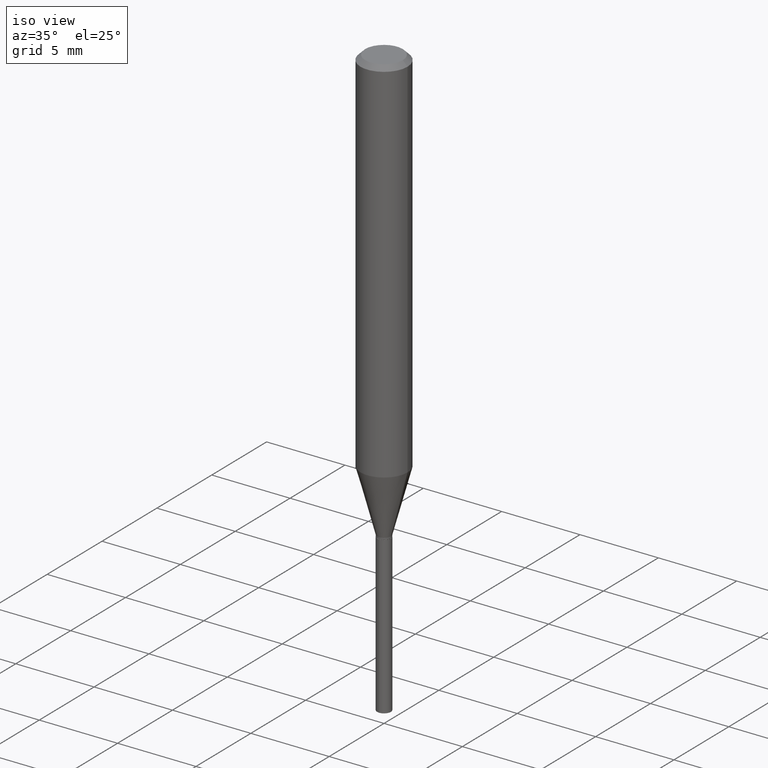
[diagram: clean part render]
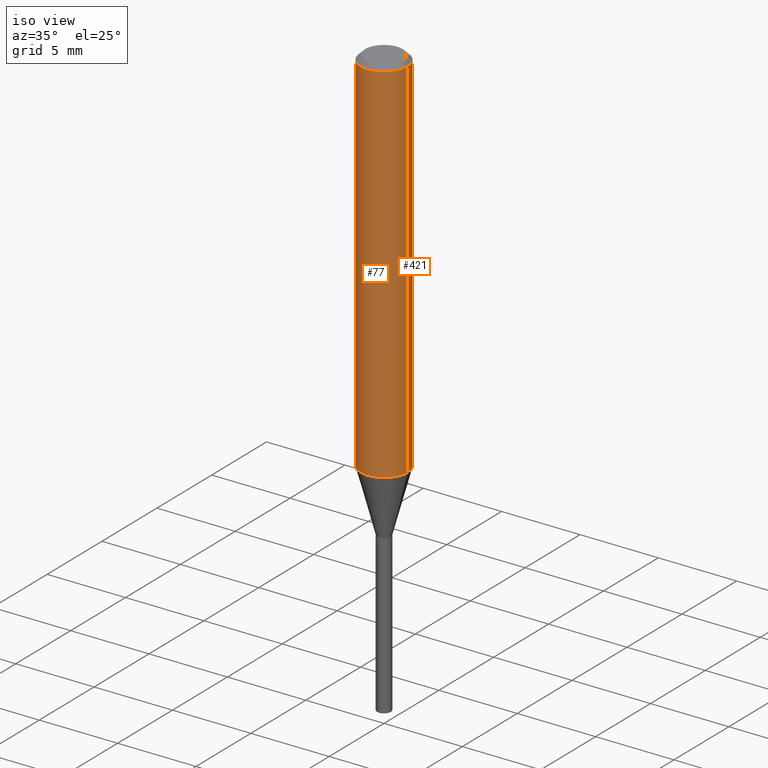
[diagram: same view with one multi-face feature highlighted, each face labeled with its STEP entity id]
A machine part, iso view. The highlighted faces form ONE feature: a constant-radius fillet chain: 2 tangent blend faces with common blend radius 1.4999 mm. The faces share edges in the B-rep.
Their STEP definitions:
[1] entity #77 (Cylinder):
#11 = VERTEX_POINT ( 'NONE', #442 ) ;
#35 = EDGE_CURVE ( 'NONE', #121, #11, #208, .T. ) ;
#38 = ORIENTED_EDGE ( 'NONE', *, *, #35, .T. ) ;
#45 = AXIS2_PLACEMENT_3D ( 'NONE', #292, #374, #448 ) ;
#68 = DIRECTION ( 'NONE',  ( -2.445468806185136597E-29, 3.491481338843145583E-15, 1.000000000000000000 ) ) ;
#77 = ADVANCED_FACE ( 'NONE', ( #171 ), #296, .T. ) ;
#89 = VECTOR ( 'NONE', #204, 39.37007874015748143 ) ;
#102 = EDGE_CURVE ( 'NONE', #439, #11, #395, .T. ) ;
#104 = CARTESIAN_POINT ( 'NONE',  ( 0.05905000000000010935, -3.669990553717989210E-15, -0.9330270711628638747 ) ) ;
#121 = VERTEX_POINT ( 'NONE', #104 ) ;
#137 = DIRECTION ( 'NONE',  ( -2.445468806185136877E-29, 3.491481338843145188E-15, 1.000000000000000000 ) ) ;
#164 = CARTESIAN_POINT ( 'NONE',  ( -0.05904999999999999832, -1.229865015639836319E-15, -0.01181000000000006871 ) ) ;
#171 = FACE_OUTER_BOUND ( 'NONE', #229, .T. ) ;
#183 = CARTESIAN_POINT ( 'NONE',  ( -0.05905000000000010935, -2.838071122134274797E-15, -0.9330270711628638747 ) ) ;
#187 = VECTOR ( 'NONE', #137, 39.37007874015748143 ) ;
#199 = CARTESIAN_POINT ( 'NONE',  ( 2.281688597855063400E-29, -3.257646607600614684E-15, -0.9330270711628638747 ) ) ;
#204 = DIRECTION ( 'NONE',  ( -2.445468806185136877E-29, 3.491481338843145188E-15, 1.000000000000000000 ) ) ;
#208 = LINE ( 'NONE', #370, #187 ) ;
#211 = DIRECTION ( 'NONE',  ( 1.000000000000000000, -6.982962677686266711E-15, 0.000000000000000000 ) ) ;
#212 = CARTESIAN_POINT ( 'NONE',  ( -0.05905000000000005383, 4.195754854663395423E-16, -2.904631170795524694E-30 ) ) ;
#227 = AXIS2_PLACEMENT_3D ( 'NONE', #411, #68, #211 ) ;
#229 = EDGE_LOOP ( 'NONE', ( #267, #438, #38, #272 ) ) ;
#233 = VERTEX_POINT ( 'NONE', #183 ) ;
#267 = ORIENTED_EDGE ( 'NONE', *, *, #443, .F. ) ;
#272 = ORIENTED_EDGE ( 'NONE', *, *, #102, .F. ) ;
#286 = DIRECTION ( 'NONE',  ( -2.445468806185136597E-29, 3.491481338843145583E-15, 1.000000000000000000 ) ) ;
#292 = CARTESIAN_POINT ( 'NONE',  ( 0.000000000000000000, 0.000000000000000000, 0.000000000000000000 ) ) ;
#296 = CYLINDRICAL_SURFACE ( 'NONE', #45, 0.05905000000000005383 ) ;
#320 = EDGE_CURVE ( 'NONE', #233, #121, #358, .T. ) ;
#326 = LINE ( 'NONE', #212, #89 ) ;
#358 = CIRCLE ( 'NONE', #386, 0.05905000000000010935 ) ;
#370 = CARTESIAN_POINT ( 'NONE',  ( 0.05905000000000005383, -4.123439461173744271E-16, 2.879382386107502672E-30 ) ) ;
#374 = DIRECTION ( 'NONE',  ( -2.445468806185136597E-29, 3.491481338843145583E-15, 1.000000000000000000 ) ) ;
#386 = AXIS2_PLACEMENT_3D ( 'NONE', #199, #286, #476 ) ;
#395 = CIRCLE ( 'NONE', #227, 0.05904999999999999832 ) ;
#411 = CARTESIAN_POINT ( 'NONE',  ( 2.888098660104663328E-31, -4.123439461173779030E-17, -0.01181000000000006871 ) ) ;
#438 = ORIENTED_EDGE ( 'NONE', *, *, #320, .T. ) ;
#439 = VERTEX_POINT ( 'NONE', #164 ) ;
#442 = CARTESIAN_POINT ( 'NONE',  ( 0.05904999999999999832, -4.535783407291118600E-16, -0.01181000000000006871 ) ) ;
#443 = EDGE_CURVE ( 'NONE', #233, #439, #326, .T. ) ;
#448 = DIRECTION ( 'NONE',  ( 1.000000000000000000, -6.982962677686266711E-15, 4.876176775795935793E-29 ) ) ;
#476 = DIRECTION ( 'NONE',  ( 1.000000000000000000, -6.982962677686267499E-15, 0.000000000000000000 ) ) ;
[2] entity #421 (Cylinder):
#4 = DIRECTION ( 'NONE',  ( 1.000000000000000000, -6.982962677686266711E-15, 0.000000000000000000 ) ) ;
#11 = VERTEX_POINT ( 'NONE', #442 ) ;
#20 = ORIENTED_EDGE ( 'NONE', *, *, #35, .F. ) ;
#29 = AXIS2_PLACEMENT_3D ( 'NONE', #97, #403, #60 ) ;
#35 = EDGE_CURVE ( 'NONE', #121, #11, #208, .T. ) ;
#48 = ORIENTED_EDGE ( 'NONE', *, *, #120, .T. ) ;
#59 = AXIS2_PLACEMENT_3D ( 'NONE', #451, #141, #101 ) ;
#60 = DIRECTION ( 'NONE',  ( 1.000000000000000000, -6.982962677686266711E-15, 4.876176775795935793E-29 ) ) ;
#65 = AXIS2_PLACEMENT_3D ( 'NONE', #331, #385, #4 ) ;
#89 = VECTOR ( 'NONE', #204, 39.37007874015748143 ) ;
#97 = CARTESIAN_POINT ( 'NONE',  ( 0.000000000000000000, 0.000000000000000000, 0.000000000000000000 ) ) ;
#101 = DIRECTION ( 'NONE',  ( 1.000000000000000000, -6.982962677686267499E-15, 0.000000000000000000 ) ) ;
#103 = FACE_OUTER_BOUND ( 'NONE', #159, .T. ) ;
#104 = CARTESIAN_POINT ( 'NONE',  ( 0.05905000000000010935, -3.669990553717989210E-15, -0.9330270711628638747 ) ) ;
#120 = EDGE_CURVE ( 'NONE', #121, #233, #302, .T. ) ;
#121 = VERTEX_POINT ( 'NONE', #104 ) ;
#137 = DIRECTION ( 'NONE',  ( -2.445468806185136877E-29, 3.491481338843145188E-15, 1.000000000000000000 ) ) ;
#141 = DIRECTION ( 'NONE',  ( -2.445468806185136597E-29, 3.491481338843145583E-15, 1.000000000000000000 ) ) ;
#159 = EDGE_LOOP ( 'NONE', ( #48, #478, #430, #20 ) ) ;
#164 = CARTESIAN_POINT ( 'NONE',  ( -0.05904999999999999832, -1.229865015639836319E-15, -0.01181000000000006871 ) ) ;
#183 = CARTESIAN_POINT ( 'NONE',  ( -0.05905000000000010935, -2.838071122134274797E-15, -0.9330270711628638747 ) ) ;
#187 = VECTOR ( 'NONE', #137, 39.37007874015748143 ) ;
#203 = EDGE_CURVE ( 'NONE', #11, #439, #396, .T. ) ;
#204 = DIRECTION ( 'NONE',  ( -2.445468806185136877E-29, 3.491481338843145188E-15, 1.000000000000000000 ) ) ;
#208 = LINE ( 'NONE', #370, #187 ) ;
#212 = CARTESIAN_POINT ( 'NONE',  ( -0.05905000000000005383, 4.195754854663395423E-16, -2.904631170795524694E-30 ) ) ;
#233 = VERTEX_POINT ( 'NONE', #183 ) ;
#289 = CYLINDRICAL_SURFACE ( 'NONE', #29, 0.05905000000000005383 ) ;
#302 = CIRCLE ( 'NONE', #59, 0.05905000000000010935 ) ;
#326 = LINE ( 'NONE', #212, #89 ) ;
#331 = CARTESIAN_POINT ( 'NONE',  ( 2.888098660104663328E-31, -4.123439461173779030E-17, -0.01181000000000006871 ) ) ;
#370 = CARTESIAN_POINT ( 'NONE',  ( 0.05905000000000005383, -4.123439461173744271E-16, 2.879382386107502672E-30 ) ) ;
#385 = DIRECTION ( 'NONE',  ( -2.445468806185136597E-29, 3.491481338843145583E-15, 1.000000000000000000 ) ) ;
#396 = CIRCLE ( 'NONE', #65, 0.05904999999999999832 ) ;
#403 = DIRECTION ( 'NONE',  ( -2.445468806185136597E-29, 3.491481338843145583E-15, 1.000000000000000000 ) ) ;
#421 = ADVANCED_FACE ( 'NONE', ( #103 ), #289, .T. ) ;
#430 = ORIENTED_EDGE ( 'NONE', *, *, #203, .F. ) ;
#439 = VERTEX_POINT ( 'NONE', #164 ) ;
#442 = CARTESIAN_POINT ( 'NONE',  ( 0.05904999999999999832, -4.535783407291118600E-16, -0.01181000000000006871 ) ) ;
#443 = EDGE_CURVE ( 'NONE', #233, #439, #326, .T. ) ;
#451 = CARTESIAN_POINT ( 'NONE',  ( 2.281688597855063400E-29, -3.257646607600614684E-15, -0.9330270711628638747 ) ) ;
#478 = ORIENTED_EDGE ( 'NONE', *, *, #443, .T. ) ;